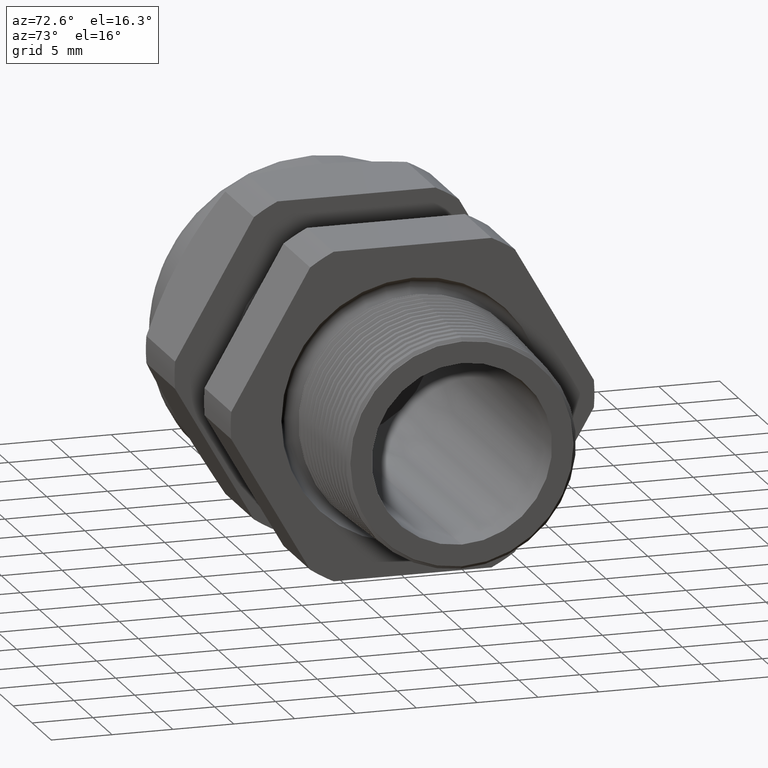
[diagram: clean part render]
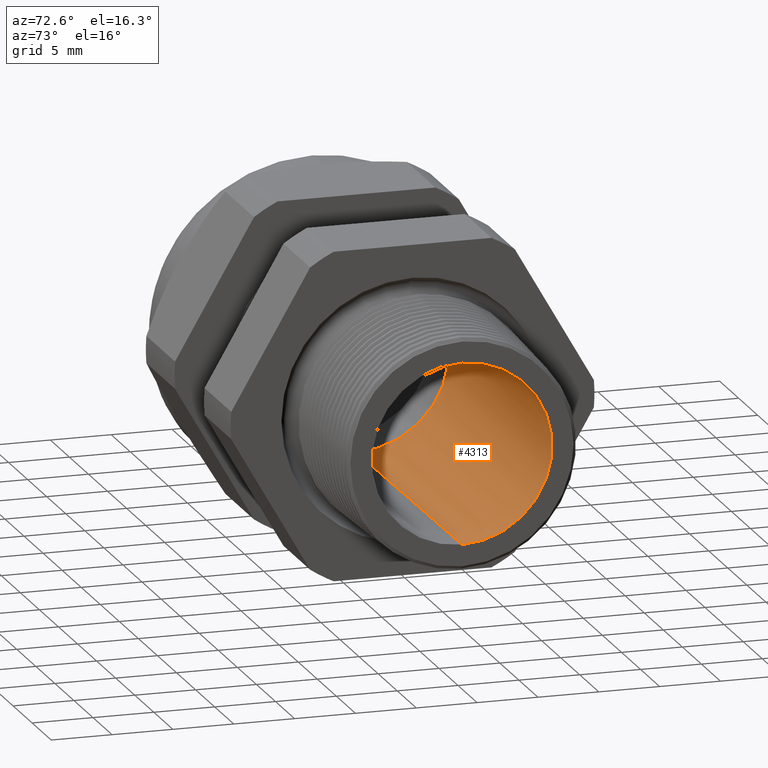
[diagram: same view with one face highlighted and labeled with its STEP entity id]
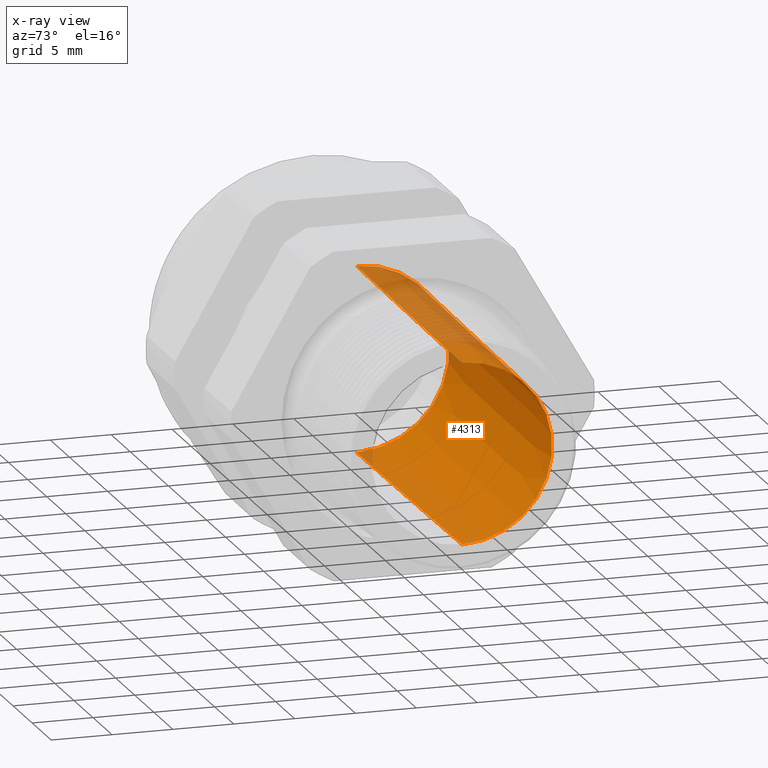
[diagram: x-ray of the same camera — body ghosted, the highlighted face saturated]
A machine part, auxiliary view. The second image highlights one B-rep face of the part: STEP entity #4313.
The next image is the same camera in x-ray: the body ghosted, the highlighted face saturated — about 13% of this face is hidden behind the body in this view.
In plain terms, the highlighted conical surface has half-angle 0.424 deg.
Its self-contained STEP definition (entity closure, byte-faithful):
#1880 = DIRECTION ( 'NONE',  ( 0.0000000000000000000, 0.0000000000000000000, -1.000000000000000000 ) ) ;
#1881 = DIRECTION ( 'NONE',  ( 1.000000000000000000, 0.0000000000000000000, 0.0000000000000000000 ) ) ;
#1882 = CARTESIAN_POINT ( 'NONE',  ( -0.8903149606299211000, 0.0000000000000000000, 0.0000000000000000000 ) ) ;
#1883 = AXIS2_PLACEMENT_3D ( 'NONE', #1882, #1881, #1880 ) ;
#1884 = CIRCLE ( 'NONE', #1883, 0.2999999999999999900 ) ;
#1978 = DIRECTION ( 'NONE',  ( 0.0000000000000000000, 0.0000000000000000000, 1.000000000000000000 ) ) ;
#1979 = DIRECTION ( 'NONE',  ( -1.000000000000000000, 0.0000000000000000000, 0.0000000000000000000 ) ) ;
#1980 = CARTESIAN_POINT ( 'NONE',  ( -0.8903149606299211000, 0.0000000000000000000, 0.0000000000000000000 ) ) ;
#1981 = AXIS2_PLACEMENT_3D ( 'NONE', #1980, #1979, #1978 ) ;
#1982 = CONICAL_SURFACE ( 'NONE', #1981, 0.2999999999999999900, 0.007405648909184102100 ) ;
#1983 = FACE_OUTER_BOUND ( 'NONE', #4311, .T. ) ;
#3837 = DIRECTION ( 'NONE',  ( 0.0000000000000000000, 0.0000000000000000000, -1.000000000000000000 ) ) ;
#3838 = DIRECTION ( 'NONE',  ( 1.000000000000000000, 0.0000000000000000000, 0.0000000000000000000 ) ) ;
#3839 = CARTESIAN_POINT ( 'NONE',  ( 0.2000000000000000400, 0.0000000000000000000, 0.0000000000000000000 ) ) ;
#3840 = AXIS2_PLACEMENT_3D ( 'NONE', #3839, #3838, #3837 ) ;
#3841 = CIRCLE ( 'NONE', #3840, 0.2919253625864464100 ) ;
#3880 = CARTESIAN_POINT ( 'NONE',  ( -0.8903149606299211000, 0.0000000000000000000, -0.2999999999999999900 ) ) ;
#3881 = DIRECTION ( 'NONE',  ( -0.9999725783074426800, 9.069221333532394100E-019, -0.007405581217251161100 ) ) ;
#3882 = VECTOR ( 'NONE', #3881, 39.37007874015748900 ) ;
#3883 = CARTESIAN_POINT ( 'NONE',  ( -0.8903149606299211000, 3.673940397442058900E-017, -0.2999999999999999900 ) ) ;
#3884 = LINE ( 'NONE', #3883, #3882 ) ;
#3885 = DIRECTION ( 'NONE',  ( -0.9999725783074426800, 0.0000000000000000000, 0.007405581217251161100 ) ) ;
#3886 = VECTOR ( 'NONE', #3885, 39.37007874015748900 ) ;
#3887 = CARTESIAN_POINT ( 'NONE',  ( -0.8903149606299211000, 0.0000000000000000000, 0.2999999999999999900 ) ) ;
#3888 = LINE ( 'NONE', #3887, #3886 ) ;
#3895 = CARTESIAN_POINT ( 'NONE',  ( -0.8903149606299211000, 3.673940397442058900E-017, 0.2999999999999999900 ) ) ;
#3929 = CARTESIAN_POINT ( 'NONE',  ( 0.2000000000000000400, 3.624497503128140000E-017, -0.2919253625864464100 ) ) ;
#3930 = CARTESIAN_POINT ( 'NONE',  ( 0.2000000000000000400, 0.0000000000000000000, 0.2919253625864464100 ) ) ;
#4261 = EDGE_CURVE ( 'NONE', #5412, #5407, #1884, .T. ) ;
#4311 = EDGE_LOOP ( 'NONE', ( #5365, #5367, #5364, #5363 ) ) ;
#4313 = ADVANCED_FACE ( 'NONE', ( #1983 ), #1982, .F. ) ;
#5363 = ORIENTED_EDGE ( 'NONE', *, *, #4261, .F. ) ;
#5364 = ORIENTED_EDGE ( 'NONE', *, *, #5410, .T. ) ;
#5365 = ORIENTED_EDGE ( 'NONE', *, *, #5411, .F. ) ;
#5366 = EDGE_CURVE ( 'NONE', #5417, #5416, #3841, .T. ) ;
#5367 = ORIENTED_EDGE ( 'NONE', *, *, #5366, .T. ) ;
#5407 = VERTEX_POINT ( 'NONE', #3895 ) ;
#5410 = EDGE_CURVE ( 'NONE', #5416, #5407, #3888, .T. ) ;
#5411 = EDGE_CURVE ( 'NONE', #5417, #5412, #3884, .T. ) ;
#5412 = VERTEX_POINT ( 'NONE', #3880 ) ;
#5416 = VERTEX_POINT ( 'NONE', #3930 ) ;
#5417 = VERTEX_POINT ( 'NONE', #3929 ) ;